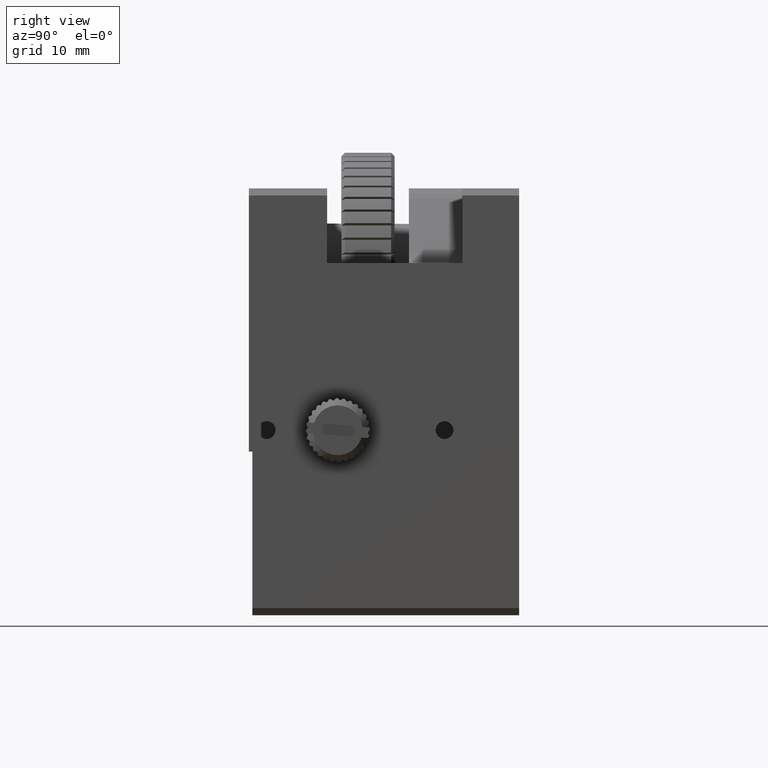
[diagram: clean part render]
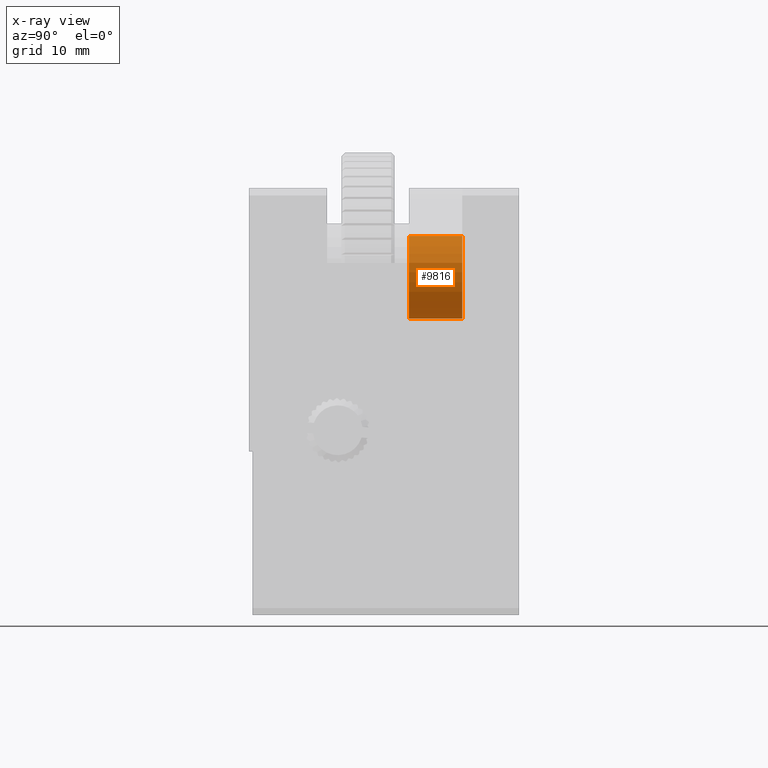
[diagram: x-ray — body ghosted, one internal face saturated and labeled with its STEP entity id]
A machine part, right view, then the same camera in x-ray: the body is ghosted and one INTERNAL B-rep face — a face not visible from any outside direction — is saturated and labeled: STEP entity #9816.
In plain terms, the highlighted cylindrical surface (bore or boss wall) has radius 5.8 mm, axis along (0, 1, 0).
Its self-contained STEP definition (entity closure, byte-faithful):
#679 = AXIS2_PLACEMENT_3D ( 'NONE', #24102, #11683, #22079 ) ;
#710 = ORIENTED_EDGE ( 'NONE', *, *, #17394, .F. ) ;
#937 = DIRECTION ( 'NONE',  ( 0.000000000000000000, 1.000000000000000000, 0.000000000000000000 ) ) ;
#1033 = FACE_OUTER_BOUND ( 'NONE', #25890, .T. ) ;
#1299 = CYLINDRICAL_SURFACE ( 'NONE', #679, 5.799999999999999822 ) ;
#1450 = CARTESIAN_POINT ( 'NONE',  ( 34.52212796203357925, 40.59151725221546769, 83.30549511013735753 ) ) ;
#1854 = AXIS2_PLACEMENT_3D ( 'NONE', #1450, #3881, #7536 ) ;
#3556 = EDGE_CURVE ( 'NONE', #5450, #5450, #7838, .T. ) ;
#3663 = ORIENTED_EDGE ( 'NONE', *, *, #3556, .F. ) ;
#3881 = DIRECTION ( 'NONE',  ( -0.000000000000000000, -1.000000000000000000, -0.000000000000000000 ) ) ;
#5450 = VERTEX_POINT ( 'NONE', #13659 ) ;
#6771 = VERTEX_POINT ( 'NONE', #21202 ) ;
#6888 = DIRECTION ( 'NONE',  ( -7.178166107490237014E-15, 0.000000000000000000, -1.000000000000000000 ) ) ;
#7536 = DIRECTION ( 'NONE',  ( -7.178166107490237014E-15, 0.000000000000000000, -1.000000000000000000 ) ) ;
#7838 = CIRCLE ( 'NONE', #14727, 5.799999999999999822 ) ;
#9816 = ADVANCED_FACE ( 'NONE', ( #1033, #21809 ), #1299, .F. ) ;
#11683 = DIRECTION ( 'NONE',  ( 0.000000000000000000, 1.000000000000000000, 0.000000000000000000 ) ) ;
#12123 = EDGE_LOOP ( 'NONE', ( #3663 ) ) ;
#13659 = CARTESIAN_POINT ( 'NONE',  ( 34.52212796203353662, 33.09151725221546769, 77.50549511013734616 ) ) ;
#13917 = CIRCLE ( 'NONE', #1854, 5.799999999999999822 ) ;
#14727 = AXIS2_PLACEMENT_3D ( 'NONE', #25526, #937, #6888 ) ;
#17394 = EDGE_CURVE ( 'NONE', #6771, #6771, #13917, .T. ) ;
#21202 = CARTESIAN_POINT ( 'NONE',  ( 34.52212796203353662, 40.59151725221546769, 77.50549511013734616 ) ) ;
#21809 = FACE_OUTER_BOUND ( 'NONE', #12123, .T. ) ;
#22079 = DIRECTION ( 'NONE',  ( -7.178166107490237014E-15, 0.000000000000000000, -1.000000000000000000 ) ) ;
#24102 = CARTESIAN_POINT ( 'NONE',  ( 34.52212796203357925, 10.59151725221546592, 83.30549511013735753 ) ) ;
#25526 = CARTESIAN_POINT ( 'NONE',  ( 34.52212796203357925, 33.09151725221546769, 83.30549511013735753 ) ) ;
#25890 = EDGE_LOOP ( 'NONE', ( #710 ) ) ;